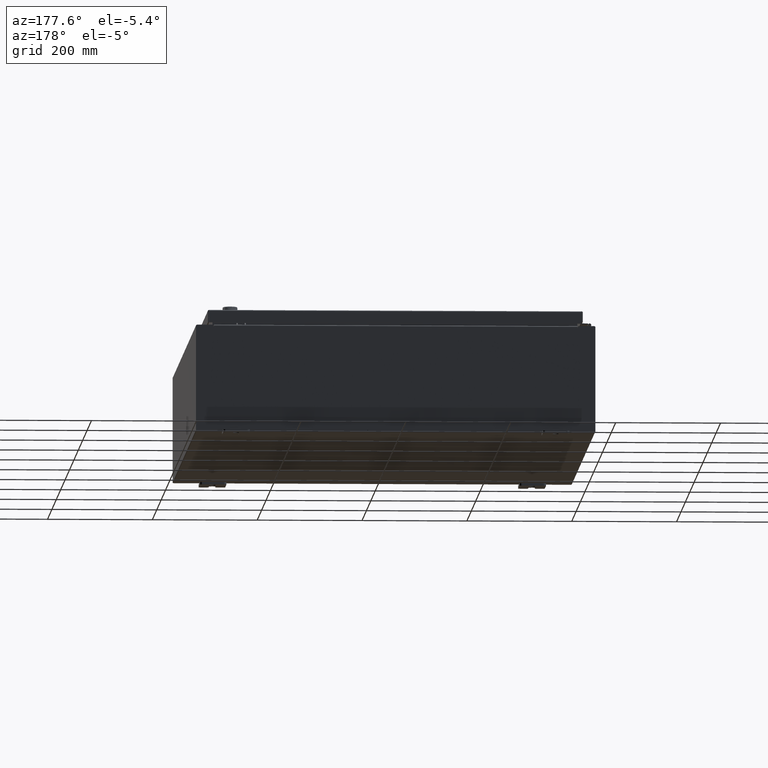
[diagram: clean part render]
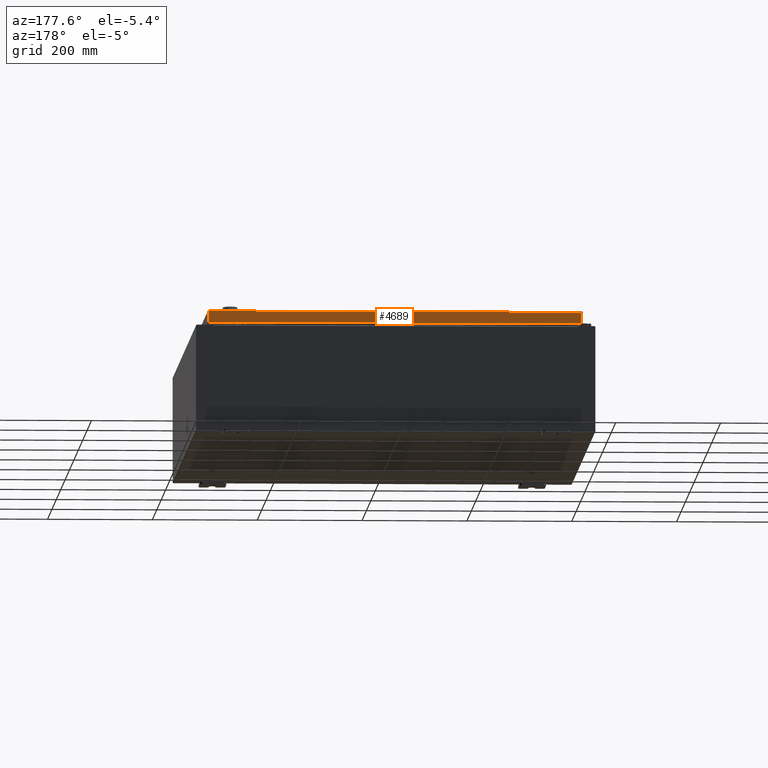
[diagram: same view with one face highlighted and labeled with its STEP entity id]
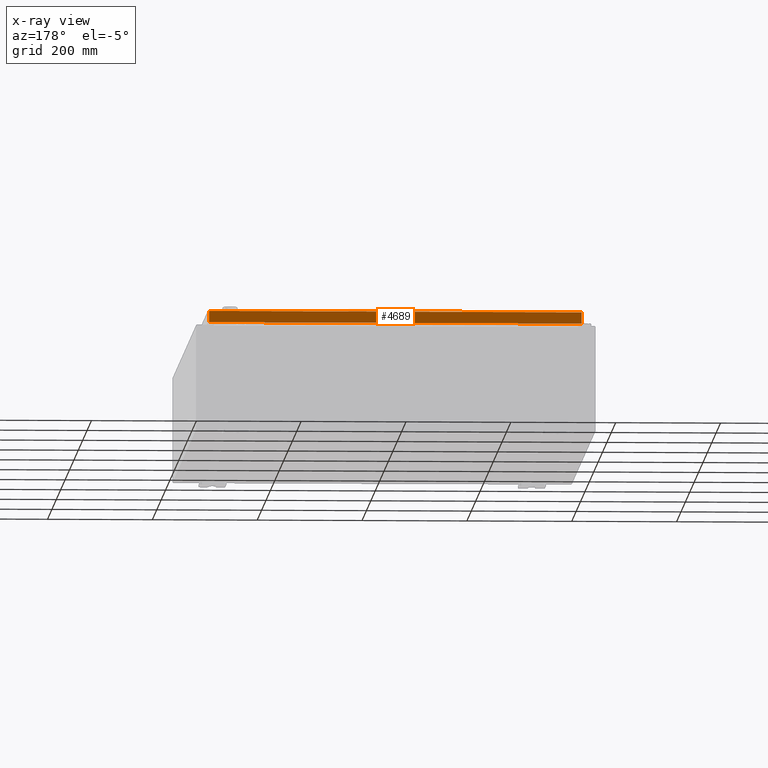
[diagram: x-ray of the same camera — body ghosted, the highlighted face saturated]
A machine part, auxiliary view. The second image highlights one B-rep face of the part: STEP entity #4689.
The next image is the same camera in x-ray: the body ghosted, the highlighted face saturated — about 0% of this face is hidden behind the body in this view.
In plain terms, the highlighted planar face has unit normal (0, -1, -0).
Its self-contained STEP definition (entity closure, byte-faithful):
#808 = ORIENTED_EDGE ( 'NONE', *, *, #37661, .T. ) ;
#3862 = LINE ( 'NONE', #14091, #50704 ) ;
#4565 = CARTESIAN_POINT ( 'NONE',  ( 13.98915786437626900, 20.09400000000000100, -0.08769999999999550400 ) ) ;
#4689 = ADVANCED_FACE ( 'NONE', ( #55469 ), #79328, .F. ) ;
#5786 = VERTEX_POINT ( 'NONE', #86104 ) ;
#8906 = DIRECTION ( 'NONE',  ( 0.0000000000000000000, 5.064839849203711700E-015, -1.000000000000000000 ) ) ;
#13771 = LINE ( 'NONE', #91532, #116288 ) ;
#14091 = CARTESIAN_POINT ( 'NONE',  ( 13.98915786437626900, 20.09400000000000100, 1.020337055859109800E-013 ) ) ;
#18292 = VECTOR ( 'NONE', #79252, 39.37007874015748100 ) ;
#21296 = VERTEX_POINT ( 'NONE', #4565 ) ;
#28585 = ORIENTED_EDGE ( 'NONE', *, *, #78496, .F. ) ;
#29852 = CARTESIAN_POINT ( 'NONE',  ( -14.07799999999999800, 20.09400000000000100, -0.08769999999999550400 ) ) ;
#30481 = LINE ( 'NONE', #62060, #109463 ) ;
#32207 = DIRECTION ( 'NONE',  ( 1.000000000000000000, -0.0000000000000000000, 1.261330583805775800E-016 ) ) ;
#37661 = EDGE_CURVE ( 'NONE', #21296, #5786, #3862, .T. ) ;
#43435 = ORIENTED_EDGE ( 'NONE', *, *, #62564, .F. ) ;
#47309 = ORIENTED_EDGE ( 'NONE', *, *, #83181, .F. ) ;
#49046 = EDGE_LOOP ( 'NONE', ( #28585, #808, #47309, #43435 ) ) ;
#50704 = VECTOR ( 'NONE', #74067, 39.37007874015748100 ) ;
#55469 = FACE_OUTER_BOUND ( 'NONE', #49046, .T. ) ;
#62060 = CARTESIAN_POINT ( 'NONE',  ( -14.07799999999999800, 20.09400000000000800, -0.9377000000000033100 ) ) ;
#62564 = EDGE_CURVE ( 'NONE', #75537, #88088, #13771, .T. ) ;
#73180 = DIRECTION ( 'NONE',  ( 6.388437403878874700E-031, -1.000000000000000000, -5.064839849203711700E-015 ) ) ;
#74067 = DIRECTION ( 'NONE',  ( 0.0000000000000000000, 5.064839849203711700E-015, -1.000000000000000000 ) ) ;
#75537 = VERTEX_POINT ( 'NONE', #108422 ) ;
#78496 = EDGE_CURVE ( 'NONE', #21296, #75537, #123884, .T. ) ;
#79252 = DIRECTION ( 'NONE',  ( -1.000000000000000000, -6.388437403878875600E-031, -3.301709433785996300E-045 ) ) ;
#79328 = PLANE ( 'NONE',  #89726 ) ;
#81598 = DIRECTION ( 'NONE',  ( -0.0000000000000000000, 5.064839849203711700E-015, -1.000000000000000000 ) ) ;
#83117 = CARTESIAN_POINT ( 'NONE',  ( -1.283692611935421300E-029, 20.09400000000000100, 1.020337055859109800E-013 ) ) ;
#83181 = EDGE_CURVE ( 'NONE', #88088, #5786, #30481, .T. ) ;
#86104 = CARTESIAN_POINT ( 'NONE',  ( 13.98915786437626900, 20.09400000000000800, -0.9376999999999997600 ) ) ;
#88088 = VERTEX_POINT ( 'NONE', #91166 ) ;
#89726 = AXIS2_PLACEMENT_3D ( 'NONE', #83117, #73180, #8906 ) ;
#91166 = CARTESIAN_POINT ( 'NONE',  ( -13.98915786437626700, 20.09400000000000800, -0.9377000000000033100 ) ) ;
#91532 = CARTESIAN_POINT ( 'NONE',  ( -13.98915786437626700, 20.09400000000000100, -0.07469999999999962800 ) ) ;
#108422 = CARTESIAN_POINT ( 'NONE',  ( -13.98915786437626900, 20.09400000000000100, -0.08769999999999550400 ) ) ;
#109463 = VECTOR ( 'NONE', #32207, 39.37007874015748100 ) ;
#116288 = VECTOR ( 'NONE', #81598, 39.37007874015748100 ) ;
#123884 = LINE ( 'NONE', #29852, #18292 ) ;